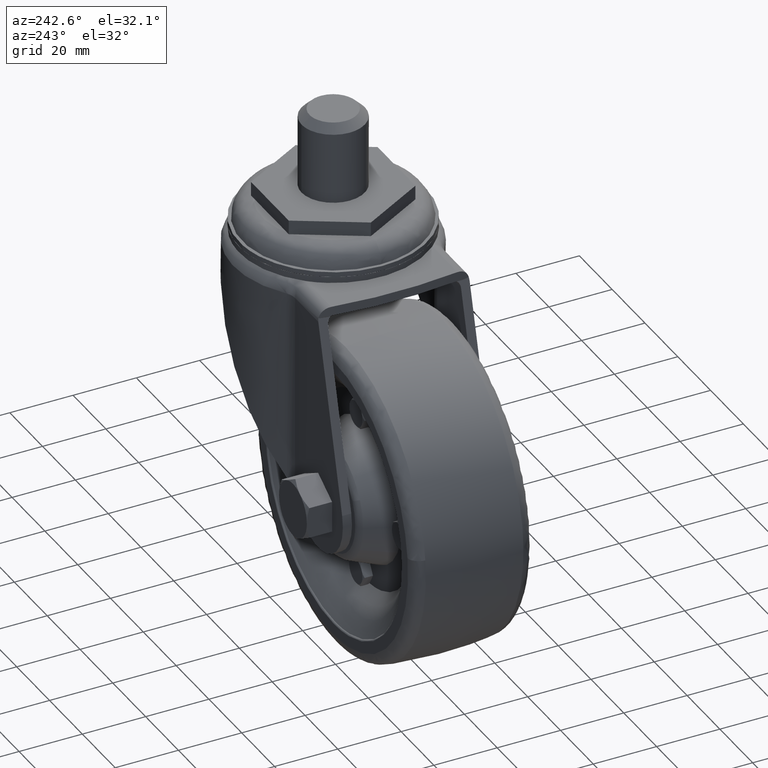
[diagram: clean part render]
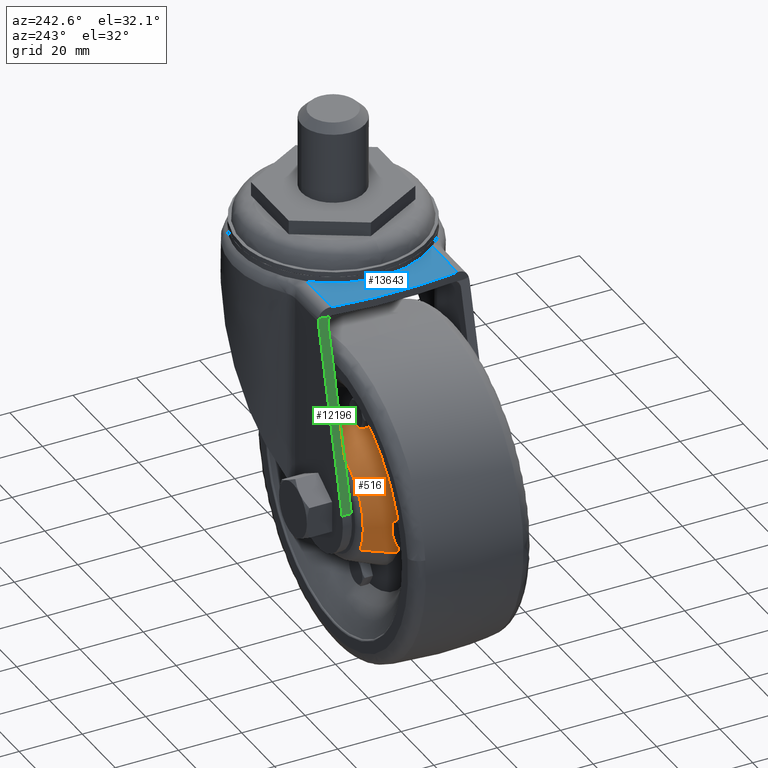
[diagram: same view with three faces highlighted in distinct colors, each labeled with its STEP entity id]
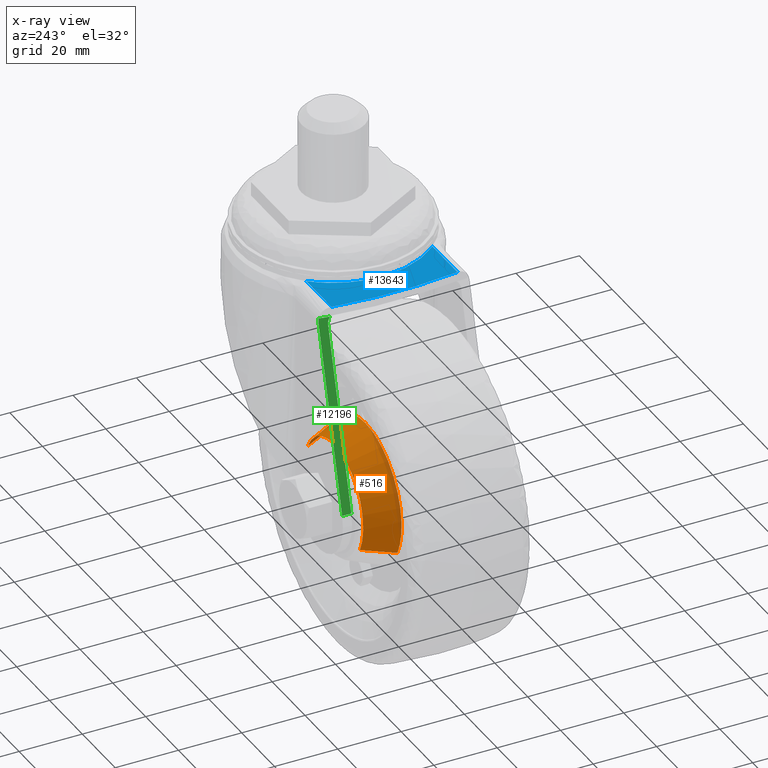
[diagram: x-ray of the same camera — body ghosted, the three highlighted faces saturated]
A machine part, auxiliary view with three faces highlighted in distinct colors.
The next image is the same camera in x-ray (body ghosted, the three faces saturated) — at least one of them is partly hidden behind the body in this view.
Their STEP definitions:

[orange] entity #516 — the highlighted face is a freeform B-spline surface patch.
#68=CARTESIAN_POINT('',(-52.986456462187228,19.000000000372971,-65.227562310277847));
#69=VERTEX_POINT('',#68);
#83=CARTESIAN_POINT('',(-37.0,19.0,-55.499999567935440));
#84=VERTEX_POINT('',#83);
#85=CARTESIAN_POINT('',(-37.0,19.0,-55.499999567935440));
#86=CARTESIAN_POINT('',(-47.952779559038945,19.000000000186485,-55.499999567977454));
#87=CARTESIAN_POINT('',(-52.986456462187228,19.000000000372975,-65.227562310277847));
#95=(BOUNDED_CURVE()B_SPLINE_CURVE(2,(#85,#86,#87),.UNSPECIFIED.,.F.,.U.)B_SPLINE_CURVE_WITH_KNOTS((3,3),(0.500000000000000,0.671825371002692),.UNSPECIFIED.)CURVE()GEOMETRIC_REPRESENTATION_ITEM()RATIONAL_B_SPLINE_CURVE((1.0,0.798694056052824,0.874103860135813))REPRESENTATION_ITEM(''));
#96=EDGE_CURVE('',#84,#69,#95,.T.);
#98=CARTESIAN_POINT('',(-21.033804619637142,19.000000000185029,-65.188524762223892));
#99=VERTEX_POINT('',#98);
#100=CARTESIAN_POINT('',(-21.033804619637142,19.000000000185036,-65.188524762223892));
#101=CARTESIAN_POINT('',(-26.077331604184558,19.000000000060865,-55.499999567921179));
#102=CARTESIAN_POINT('',(-37.0,19.0,-55.499999567935440));
#110=(BOUNDED_CURVE()B_SPLINE_CURVE(2,(#100,#101,#102),.UNSPECIFIED.,.F.,.U.)B_SPLINE_CURVE_WITH_KNOTS((3,3),(0.328552124121037,0.500000000000000),.UNSPECIFIED.)CURVE()GEOMETRIC_REPRESENTATION_ITEM()RATIONAL_B_SPLINE_CURVE((0.873773849652483,0.799136319100325,1.0))REPRESENTATION_ITEM(''));
#111=EDGE_CURVE('',#99,#84,#110,.T.);
#203=CARTESIAN_POINT('',(-52.966195380362848,19.000000000185022,-81.811475237776108));
#204=VERTEX_POINT('',#203);
#218=CARTESIAN_POINT('',(-52.986456462187228,19.000000000372971,-65.227562310277847));
#219=CARTESIAN_POINT('',(-53.543550192065268,19.000000000364299,-66.303761056503731));
#220=CARTESIAN_POINT('',(-54.356078664779631,19.000000000346120,-68.359496176599038));
#221=CARTESIAN_POINT('',(-54.918279417634430,19.000000000317240,-71.232206338528201));
#222=CARTESIAN_POINT('',(-55.058475042502387,19.000000000286860,-73.971325088320455));
#223=CARTESIAN_POINT('',(-54.824158889766608,19.000000000257671,-76.437832933076834));
#224=CARTESIAN_POINT('',(-54.149145417387757,19.000000000222109,-79.188916331817865));
#225=CARTESIAN_POINT('',(-53.463685134844120,19.000000000199002,-80.856048676451351));
#226=CARTESIAN_POINT('',(-52.966195380362848,19.000000000185022,-81.811475237776108));
#227=B_SPLINE_CURVE_WITH_KNOTS('',3,(#218,#219,#220,#221,#222,#223,#224,#225,#226),.UNSPECIFIED.,.F.,.U.,(4,1,1,1,1,1,4),(-5.829651E-009,3.635497674419941,6.597787153331874,8.751995182294634,11.848847126852259,14.003267817761630,17.234817893342520),.UNSPECIFIED.);
#228=EDGE_CURVE('',#69,#204,#227,.T.);
#449=CARTESIAN_POINT('',(-21.122505693418400,19.250000000382300,-65.234699618670675));
#450=CARTESIAN_POINT('',(-29.387806074747736,19.250000000382300,-49.357205312089086));
#451=CARTESIAN_POINT('',(-45.265300381329332,19.250000000382300,-57.622505693418397));
#452=CARTESIAN_POINT('',(-61.142794687910921,19.250000000382300,-65.887806074747729));
#453=CARTESIAN_POINT('',(-52.877494306581603,19.250000000382300,-81.765300381329325));
#454=CARTESIAN_POINT('',(-17.394843069495629,8.743749999990442,-63.294201281083218));
#455=CARTESIAN_POINT('',(-27.600641788412414,8.743749999990442,-43.689044350578847));
#456=CARTESIAN_POINT('',(-47.205798718916782,8.743749999990442,-53.894843069495643));
#457=CARTESIAN_POINT('',(-66.810955649421146,8.743749999990442,-64.100641788412432));
#458=CARTESIAN_POINT('',(-56.605156930504357,8.743749999990442,-83.705798718916782));
#466=(BOUNDED_SURFACE()B_SPLINE_SURFACE(2,1,((#449,#454),(#450,#455),(#451,#456),(#452,#457),(#453,#458)),.UNSPECIFIED.,.F.,.F.,.U.)B_SPLINE_SURFACE_WITH_KNOTS((3,2,3),(2,2),(0.0,36.620621031067557,73.241242062135129),(0.0,11.315577382825159),.UNSPECIFIED.)GEOMETRIC_REPRESENTATION_ITEM()RATIONAL_B_SPLINE_SURFACE(((1.0,1.0),(0.707106781186548,0.707106781186548),(1.0,1.0),(0.707106781186548,0.707106781186548),(1.0,1.0)))REPRESENTATION_ITEM('')SURFACE());
#467=ORIENTED_EDGE('',*,*,#111,.T.);
#468=ORIENTED_EDGE('',*,*,#96,.T.);
#469=ORIENTED_EDGE('',*,*,#228,.T.);
#470=CARTESIAN_POINT('',(-56.514238329911549,8.999999999996486,-83.658469491191710));
#471=VERTEX_POINT('',#470);
#472=CARTESIAN_POINT('',(-52.966195380362848,19.000000000185022,-81.811475237776108));
#473=CARTESIAN_POINT('',(-56.514238329911549,8.999999999996486,-83.658469491191710));
#474=QUASI_UNIFORM_CURVE('',1,(#472,#473),.UNSPECIFIED.,.F.,.U.);
#475=EDGE_CURVE('',#204,#471,#474,.T.);
#476=ORIENTED_EDGE('',*,*,#475,.T.);
#477=CARTESIAN_POINT('',(-37.0,9.0,-51.500000000000000));
#478=VERTEX_POINT('',#477);
#479=CARTESIAN_POINT('',(-37.0,9.0,-51.500000000000000));
#480=CARTESIAN_POINT('',(-59.000000000000369,8.999999999998934,-51.500000000000199));
#481=CARTESIAN_POINT('',(-59.000000000001002,8.999999999997176,-73.500000000000512));
#482=CARTESIAN_POINT('',(-59.000000000001151,8.999999999996746,-78.883365751051485));
#483=CARTESIAN_POINT('',(-56.514238329911556,8.999999999996486,-83.658469491191710));
#491=(BOUNDED_CURVE()B_SPLINE_CURVE(2,(#479,#480,#481,#482,#483),.UNSPECIFIED.,.F.,.U.)B_SPLINE_CURVE_WITH_KNOTS((3,2,3),(0.500000000000000,0.750000000000000,0.828552124121222),.UNSPECIFIED.)CURVE()GEOMETRIC_REPRESENTATION_ITEM()RATIONAL_B_SPLINE_CURVE((1.0,0.707106781186548,1.0,0.907970462086006,0.873773849652322))REPRESENTATION_ITEM(''));
#492=EDGE_CURVE('',#478,#471,#491,.T.);
#493=ORIENTED_EDGE('',*,*,#492,.F.);
#494=CARTESIAN_POINT('',(-17.485761670088451,8.999999999996486,-63.341530508808283));
#495=VERTEX_POINT('',#494);
#496=CARTESIAN_POINT('',(-17.485761670088454,8.999999999996486,-63.341530508808283));
#497=CARTESIAN_POINT('',(-23.650072281093934,8.999999999998243,-51.499999999999666));
#498=CARTESIAN_POINT('',(-37.0,9.0,-51.500000000000000));
#506=(BOUNDED_CURVE()B_SPLINE_CURVE(2,(#496,#497,#498),.UNSPECIFIED.,.F.,.U.)B_SPLINE_CURVE_WITH_KNOTS((3,3),(0.328552124121222,0.500000000000000),.UNSPECIFIED.)CURVE()GEOMETRIC_REPRESENTATION_ITEM()RATIONAL_B_SPLINE_CURVE((0.873773849652322,0.799136319100542,1.0))REPRESENTATION_ITEM(''));
#507=EDGE_CURVE('',#495,#478,#506,.T.);
#508=ORIENTED_EDGE('',*,*,#507,.F.);
#509=CARTESIAN_POINT('',(-21.033804619637142,19.000000000185029,-65.188524762223892));
#510=CARTESIAN_POINT('',(-17.485761670088451,8.999999999996486,-63.341530508808283));
#511=QUASI_UNIFORM_CURVE('',1,(#509,#510),.UNSPECIFIED.,.F.,.U.);
#512=EDGE_CURVE('',#99,#495,#511,.T.);
#513=ORIENTED_EDGE('',*,*,#512,.F.);
#514=EDGE_LOOP('',(#467,#468,#469,#476,#493,#508,#513));
#515=FACE_OUTER_BOUND('',#514,.T.);
#516=ADVANCED_FACE('',(#515),#466,.T.);

[blue] entity #13643 — the highlighted face is a freeform B-spline surface patch.
#12881=CARTESIAN_POINT('',(-22.008330674931500,19.943003306996449,-9.700000000000001));
#12882=VERTEX_POINT('',#12881);
#12919=CARTESIAN_POINT('',(-22.008330674932601,-19.943003306995202,-9.700000000000001));
#12920=VERTEX_POINT('',#12919);
#13129=CARTESIAN_POINT('',(-22.934730618530651,19.899999999999999,-9.700000000000001));
#13130=VERTEX_POINT('',#13129);
#13144=CARTESIAN_POINT('',(-22.008330674931500,19.943003306996449,-9.700000000000001));
#13145=CARTESIAN_POINT('',(-22.470532544115990,19.900000000000006,-9.700000000000001));
#13146=CARTESIAN_POINT('',(-22.934730618530651,19.899999999999999,-9.700000000000001));
#13154=(BOUNDED_CURVE()B_SPLINE_CURVE(2,(#13144,#13145,#13146),.UNSPECIFIED.,.F.,.U.)CURVE()GEOMETRIC_REPRESENTATION_ITEM()QUASI_UNIFORM_CURVE()RATIONAL_B_SPLINE_CURVE((1.0,0.998924338801602,1.0))REPRESENTATION_ITEM(''));
#13155=EDGE_CURVE('',#12882,#13130,#13154,.T.);
#13175=CARTESIAN_POINT('',(-37.338154816002948,19.899999999999999,-9.700000000000001));
#13176=VERTEX_POINT('',#13175);
#13208=CARTESIAN_POINT('',(-22.934730618530651,19.899999999999999,-9.700000000000001));
#13209=CARTESIAN_POINT('',(-37.338154816002948,19.899999999999999,-9.700000000000001));
#13210=QUASI_UNIFORM_CURVE('',1,(#13208,#13209),.UNSPECIFIED.,.F.,.U.);
#13211=EDGE_CURVE('',#13130,#13176,#13210,.T.);
#13490=CARTESIAN_POINT('',(-22.934730618530651,-19.899999999999650,-9.700000000000001));
#13491=VERTEX_POINT('',#13490);
#13508=CARTESIAN_POINT('',(-22.934730618530651,-19.899999999999650,-9.700000000000001));
#13509=CARTESIAN_POINT('',(-22.470532544116601,-19.899999999999654,-9.700000000000001));
#13510=CARTESIAN_POINT('',(-22.008330674932601,-19.943003306995209,-9.700000000000001));
#13518=(BOUNDED_CURVE()B_SPLINE_CURVE(2,(#13508,#13509,#13510),.UNSPECIFIED.,.F.,.U.)CURVE()GEOMETRIC_REPRESENTATION_ITEM()QUASI_UNIFORM_CURVE()RATIONAL_B_SPLINE_CURVE((1.0,0.998924338801604,1.0))REPRESENTATION_ITEM(''));
#13519=EDGE_CURVE('',#13491,#12920,#13518,.T.);
#13541=CARTESIAN_POINT('',(-37.338154816002948,-19.899999999999999,-9.700000000000001));
#13542=VERTEX_POINT('',#13541);
#13543=CARTESIAN_POINT('',(-37.338154816002948,-19.899999999999999,-9.700000000000001));
#13544=CARTESIAN_POINT('',(-22.934730618530651,-19.899999999999650,-9.700000000000001));
#13545=QUASI_UNIFORM_CURVE('',1,(#13543,#13544),.UNSPECIFIED.,.F.,.U.);
#13546=EDGE_CURVE('',#13542,#13491,#13545,.T.);
#13601=CARTESIAN_POINT('',(-37.338154816002948,-19.899999999999999,-9.700000000000001));
#13602=CARTESIAN_POINT('',(-40.074660985060476,-6.938894E-014,-9.700000000000001));
#13603=CARTESIAN_POINT('',(-37.338154816002763,19.899999999999871,-9.700000000000001));
#13611=(BOUNDED_CURVE()B_SPLINE_CURVE(2,(#13601,#13602,#13603),.UNSPECIFIED.,.F.,.U.)CURVE()GEOMETRIC_REPRESENTATION_ITEM()QUASI_UNIFORM_CURVE()RATIONAL_B_SPLINE_CURVE((1.0,0.990677118792669,1.0))REPRESENTATION_ITEM(''));
#13612=EDGE_CURVE('',#13542,#13176,#13611,.T.);
#13618=CARTESIAN_POINT('',(-39.533748850435089,-21.935309260057270,-9.700000000000001));
#13619=CARTESIAN_POINT('',(-21.174581376790581,-21.935309260057270,-9.700000000000001));
#13620=CARTESIAN_POINT('',(-39.533748850435089,21.935310329884580,-9.700000000000001));
#13621=CARTESIAN_POINT('',(-21.174581376790581,21.935310329884580,-9.700000000000001));
#13622=B_SPLINE_SURFACE_WITH_KNOTS('',1,1,((#13618,#13620),(#13619,#13621)),.UNSPECIFIED.,.F.,.F.,.U.,(2,2),(2,2),(0.0,18.359167473644511),(0.0,43.870619589941853),.UNSPECIFIED.);
#13623=ORIENTED_EDGE('',*,*,#13519,.T.);
#13624=CARTESIAN_POINT('',(-22.008330674932580,-19.943003306995180,-9.700000000000001));
#13625=CARTESIAN_POINT('',(-40.079823091931274,1.127903E-012,-9.700000000000001));
#13626=CARTESIAN_POINT('',(-22.008330674931479,19.943003306996442,-9.700000000000001));
#13634=(BOUNDED_CURVE()B_SPLINE_CURVE(2,(#13624,#13625,#13626),.UNSPECIFIED.,.F.,.U.)CURVE()GEOMETRIC_REPRESENTATION_ITEM()QUASI_UNIFORM_CURVE()RATIONAL_B_SPLINE_CURVE((1.0,0.741021234846196,1.0))REPRESENTATION_ITEM(''));
#13635=EDGE_CURVE('',#12920,#12882,#13634,.T.);
#13636=ORIENTED_EDGE('',*,*,#13635,.T.);
#13637=ORIENTED_EDGE('',*,*,#13155,.T.);
#13638=ORIENTED_EDGE('',*,*,#13211,.T.);
#13639=ORIENTED_EDGE('',*,*,#13612,.F.);
#13640=ORIENTED_EDGE('',*,*,#13546,.T.);
#13641=EDGE_LOOP('',(#13623,#13636,#13637,#13638,#13639,#13640));
#13642=FACE_OUTER_BOUND('',#13641,.T.);
#13643=ADVANCED_FACE('',(#13642),#13622,.T.);

[green] entity #12196 — the highlighted face is a freeform B-spline surface patch.
#10162=CARTESIAN_POINT('',(-51.561368064315900,21.0,-69.899088990891414));
#10163=VERTEX_POINT('',#10162);
#10186=CARTESIAN_POINT('',(-51.561368064315900,23.899999999999999,-69.899088990891414));
#10187=VERTEX_POINT('',#10186);
#10188=CARTESIAN_POINT('',(-51.561368064315900,23.899999999999999,-69.899088990891414));
#10189=CARTESIAN_POINT('',(-51.561368064315900,21.0,-69.899088990891414));
#10190=QUASI_UNIFORM_CURVE('',1,(#10188,#10189),.UNSPECIFIED.,.F.,.U.);
#10191=EDGE_CURVE('',#10187,#10163,#10190,.T.);
#10724=CARTESIAN_POINT('',(-36.878922661560402,20.000144972082548,-13.100108737272180));
#10725=VERTEX_POINT('',#10724);
#10758=CARTESIAN_POINT('',(-36.878922661560352,20.416478004098700,-13.100108737272180));
#10759=VERTEX_POINT('',#10758);
#10770=CARTESIAN_POINT('',(-36.878922661560402,20.000144972082548,-13.100108737272180));
#10771=CARTESIAN_POINT('',(-36.878922661560352,20.416478004098700,-13.100108737272180));
#10772=QUASI_UNIFORM_CURVE('',1,(#10770,#10771),.UNSPECIFIED.,.F.,.U.);
#10773=EDGE_CURVE('',#10725,#10759,#10772,.T.);
#10926=CARTESIAN_POINT('',(-37.395891349120149,21.0,-15.100000000000000));
#10927=VERTEX_POINT('',#10926);
#10928=CARTESIAN_POINT('',(-37.395891349120198,21.0,-15.099999999999991));
#10929=CARTESIAN_POINT('',(-37.072797629287663,21.0,-13.850113260465955));
#10930=CARTESIAN_POINT('',(-36.878922661560367,20.000144972082548,-13.100108737272089));
#10938=(BOUNDED_CURVE()B_SPLINE_CURVE(2,(#10928,#10929,#10930),.UNSPECIFIED.,.F.,.U.)CURVE()GEOMETRIC_REPRESENTATION_ITEM()QUASI_UNIFORM_CURVE()RATIONAL_B_SPLINE_CURVE((1.0,0.894443399224622,1.0))REPRESENTATION_ITEM(''));
#10939=EDGE_CURVE('',#10927,#10725,#10938,.T.);
#11603=CARTESIAN_POINT('',(-37.395891349120149,21.0,-15.100000000000000));
#11604=CARTESIAN_POINT('',(-51.561368064315900,21.0,-69.899088990891414));
#11605=QUASI_UNIFORM_CURVE('',1,(#11603,#11604),.UNSPECIFIED.,.F.,.U.);
#11606=EDGE_CURVE('',#10927,#10163,#11605,.T.);
#11817=CARTESIAN_POINT('',(-37.033993591940849,23.899999999999999,-13.699999999999999));
#11818=VERTEX_POINT('',#11817);
#11819=CARTESIAN_POINT('',(-37.033993591940849,23.899999999999999,-13.699999999999999));
#11820=CARTESIAN_POINT('',(-51.561368064315900,23.899999999999999,-69.899088990891414));
#11821=QUASI_UNIFORM_CURVE('',1,(#11819,#11820),.UNSPECIFIED.,.F.,.U.);
#11822=EDGE_CURVE('',#11818,#10187,#11821,.T.);
#12144=CARTESIAN_POINT('',(-52.300145158726707,19.805347220996751,-72.757045172317930));
#12145=CARTESIAN_POINT('',(-36.032257778857392,19.805347220996751,-9.824789086156363));
#12146=CARTESIAN_POINT('',(-52.300145158726707,24.094797855688061,-72.757045172317930));
#12147=CARTESIAN_POINT('',(-36.032257778857392,24.094797855688061,-9.824789086156363));
#12148=B_SPLINE_SURFACE_WITH_KNOTS('',1,1,((#12144,#12146),(#12145,#12147)),.UNSPECIFIED.,.F.,.F.,.U.,(2,2),(2,2),(0.0,65.000869347250514),(0.0,4.289450634691313),.UNSPECIFIED.);
#12149=ORIENTED_EDGE('',*,*,#10939,.T.);
#12150=ORIENTED_EDGE('',*,*,#10773,.T.);
#12151=CARTESIAN_POINT('',(-36.771035269975812,23.768487550924299,-12.682746802244781));
#12152=VERTEX_POINT('',#12151);
#12153=CARTESIAN_POINT('',(-36.878922661560352,20.416478004098700,-13.100108737272180));
#12154=CARTESIAN_POINT('',(-36.878922661560338,20.700237740966379,-13.100108737272160));
#12155=CARTESIAN_POINT('',(-36.877430759547018,20.983760673998649,-13.094337320408490));
#12156=CARTESIAN_POINT('',(-36.871394917552287,21.550322101882799,-13.070987690229851));
#12157=CARTESIAN_POINT('',(-36.866865919156552,21.833494434977251,-13.053467278378120));
#12158=CARTESIAN_POINT('',(-36.857061535959950,22.257315828087940,-13.015539061905431));
#12159=CARTESIAN_POINT('',(-36.853286714530491,22.398376024067851,-13.000936180576639));
#12160=CARTESIAN_POINT('',(-36.844398491289091,22.679932124270071,-12.966552125160160));
#12161=CARTESIAN_POINT('',(-36.839301697327429,22.820370547763069,-12.946835198473609));
#12162=CARTESIAN_POINT('',(-36.830134568942697,23.030044073858392,-12.911372199645960));
#12163=CARTESIAN_POINT('',(-36.826821914116920,23.099767097634452,-12.898557207941479));
#12164=CARTESIAN_POINT('',(-36.819488477914959,23.238587115682211,-12.870187839855980));
#12165=CARTESIAN_POINT('',(-36.815472055884911,23.307747900631600,-12.854650327587571));
#12166=CARTESIAN_POINT('',(-36.806337893780110,23.444857111552871,-12.819314858679450));
#12167=CARTESIAN_POINT('',(-36.801253079147500,23.512940048547261,-12.799644273978659));
#12168=CARTESIAN_POINT('',(-36.791977279712768,23.612715400334970,-12.763760881636440));
#12169=CARTESIAN_POINT('',(-36.788608280783407,23.645587614639719,-12.750727922996800));
#12170=CARTESIAN_POINT('',(-36.782798496066683,23.693491502419370,-12.728252794477550));
#12171=CARTESIAN_POINT('',(-36.780732518922747,23.709226338017778,-12.720260570308939));
#12172=CARTESIAN_POINT('',(-36.776232408360741,23.739720501233489,-12.702851910924281));
#12173=CARTESIAN_POINT('',(-36.773803097560616,23.754523418890951,-12.693454131986300));
#12174=CARTESIAN_POINT('',(-36.771035269975748,23.768487550924348,-12.682746802244759));
#12175=B_SPLINE_CURVE_WITH_KNOTS('',3,(#12153,#12154,#12155,#12156,#12157,#12158,#12159,#12160,#12161,#12162,#12163,#12164,#12165,#12166,#12167,#12168,#12169,#12170,#12171,#12172,#12173,#12174),.UNSPECIFIED.,.F.,.U.,(4,2,2,2,2,2,2,2,2,2,4),(0.0,0.250000000000000,0.500000000000000,0.624999999999999,0.749999999999998,0.812499999999999,0.874999999999999,0.937500000000000,0.968750000000001,0.984375000000000,1.0),.UNSPECIFIED.);
#12176=EDGE_CURVE('',#10759,#12152,#12175,.T.);
#12177=ORIENTED_EDGE('',*,*,#12176,.T.);
#12178=CARTESIAN_POINT('',(-36.771035269975812,23.768487550924299,-12.682746802244781));
#12179=CARTESIAN_POINT('',(-36.900316912521433,23.900000000000002,-13.182872309997636));
#12180=CARTESIAN_POINT('',(-37.033993591940849,23.899999999999999,-13.699999999999999));
#12188=(BOUNDED_CURVE()B_SPLINE_CURVE(2,(#12178,#12179,#12180),.UNSPECIFIED.,.F.,.U.)CURVE()GEOMETRIC_REPRESENTATION_ITEM()QUASI_UNIFORM_CURVE()RATIONAL_B_SPLINE_CURVE((1.0,0.991746411067645,1.0))REPRESENTATION_ITEM(''));
#12189=EDGE_CURVE('',#12152,#11818,#12188,.T.);
#12190=ORIENTED_EDGE('',*,*,#12189,.T.);
#12191=ORIENTED_EDGE('',*,*,#11822,.T.);
#12192=ORIENTED_EDGE('',*,*,#10191,.T.);
#12193=ORIENTED_EDGE('',*,*,#11606,.F.);
#12194=EDGE_LOOP('',(#12149,#12150,#12177,#12190,#12191,#12192,#12193));
#12195=FACE_OUTER_BOUND('',#12194,.T.);
#12196=ADVANCED_FACE('',(#12195),#12148,.T.);